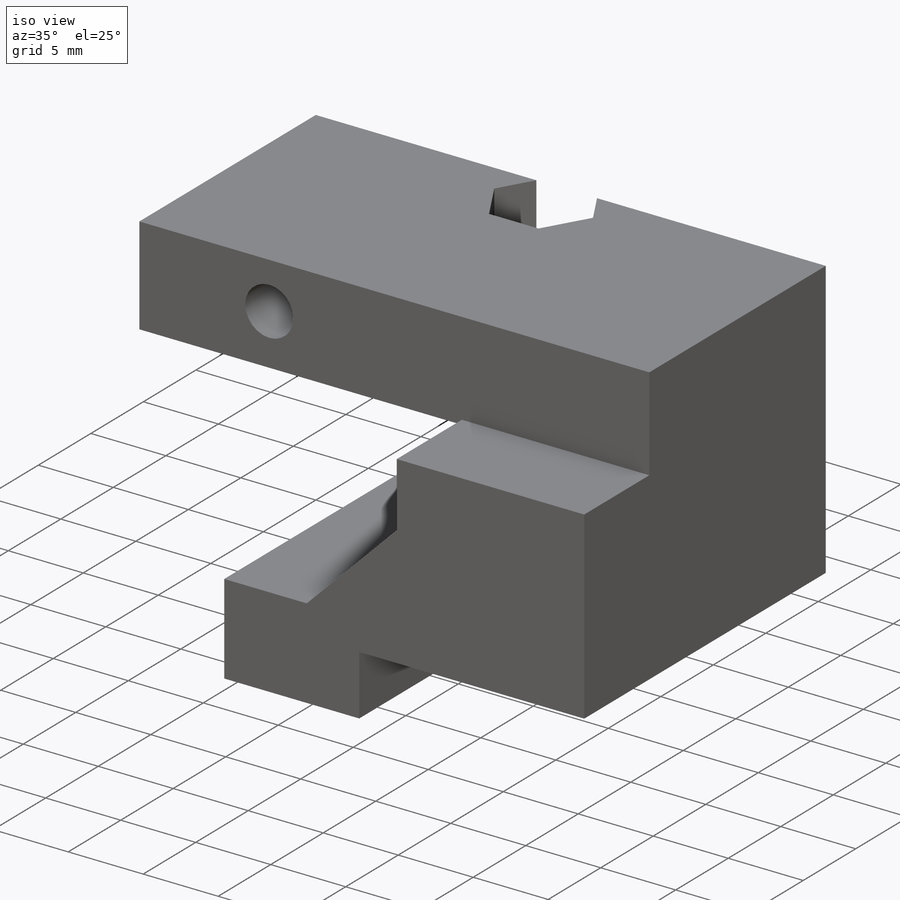
[diagram: iso view]
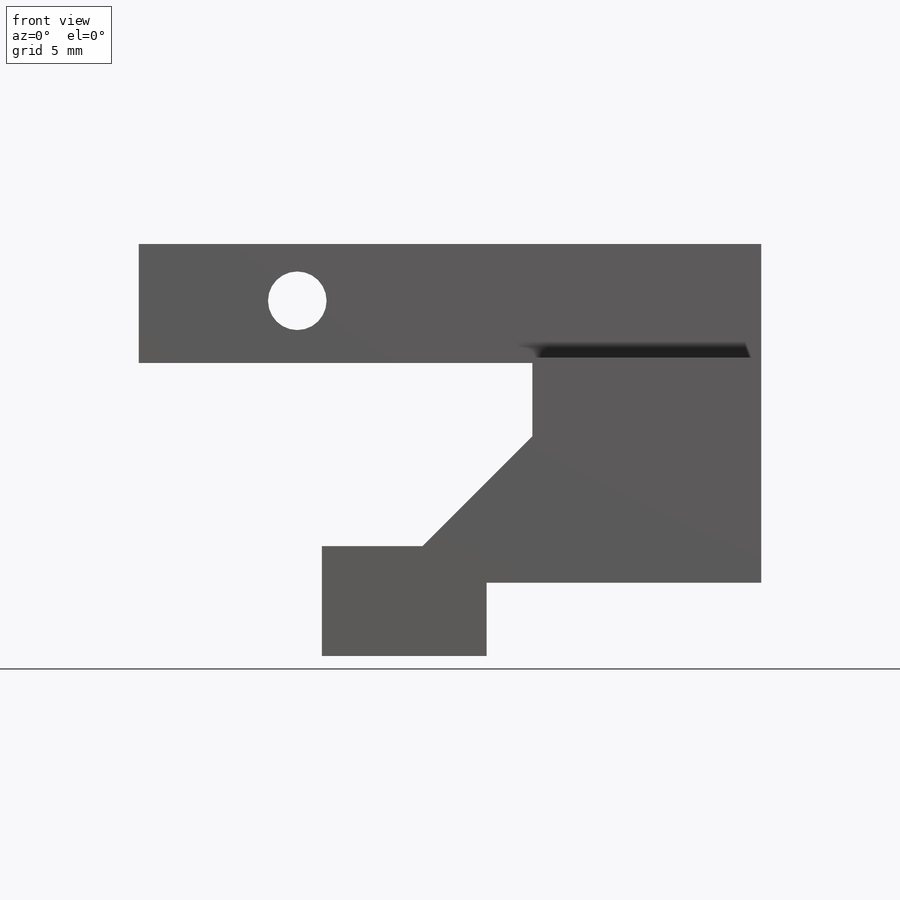
[diagram: front view]
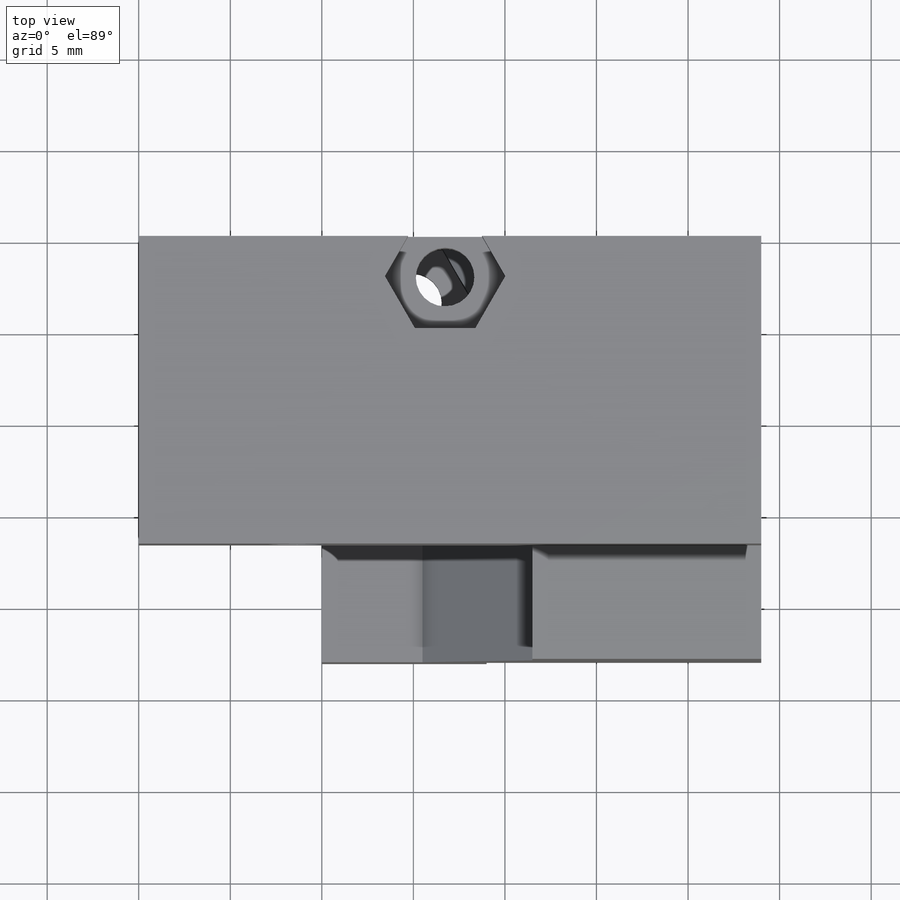
[diagram: top view]
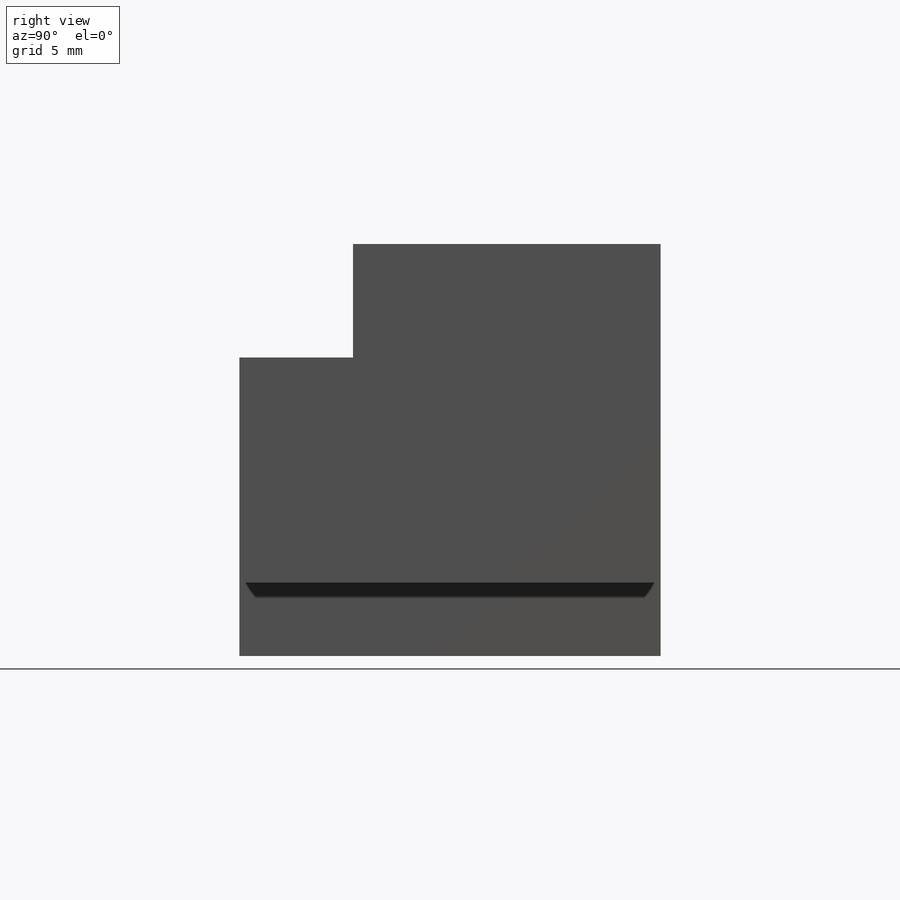
[diagram: right view]
SOLIDWORKS PART (.sldprt)
format: sldprt  version: not decoded by parser v0  size: 526,848 bytes
history: native  units: mm
features: sketch x10, cut_extrude x8, plane x3, extrude x2, material x1 (+13 scaffold rows collapsed)
feature tree (37):
  scaffold x13  (default folders/planes/origin — collapsed)
  material  "Material <sin especificar>"
  plane  "Alzado"
  plane  "Planta"
  plane  "Vista lateral"
  sketch  "Croquis1"  dims[c1.D1=14.0mm c1.D2=4.0mm c1.D3=10.0mm c1.D4=22.5mm c1.D5=2.0mm c1.D6=6.5mm c1.D7=6.0mm c2.D4=22.5mm c2.D8=10.0mm c2.D1=24.0mm c2.D3=9.0mm c2.D5=21.5mm]
  extrude  "Saliente-Extruir1"  Depth=23mm
  sketch  "Croquis2"  dims[D1=6.2mm]
  cut_extrude  "Cortar-Extruir1"  Depth=6.2mm
  sketch  "Croquis3"
  cut_extrude  "Cortar-Extruir2"  [1 undecoded]
  sketch  "Croquis4"  dims[D1=3.2mm D2=8.66mm D3=3.1mm]
  cut_extrude  "Cortar-Extruir3"  [1 undecoded]
  sketch  "Croquis5"  dims[D1=5.7mm]
  cut_extrude  "Cortar-Extruir4"  Depth=7mm
  sketch  "Croquis6"  dims[D1=3.2mm D2=8.07mm D3=14.6mm]
  cut_extrude  "Cortar-Extruir5"  [1 undecoded]
  sketch  "Croquis7"  dims[D1=3.2mm D2=3.3mm D3=4.95mm]
  cut_extrude  "Cortar-Extruir6"  [1 undecoded]
  sketch  "Croquis10"  dims[c1.D1=~6.064169mm c2.D1=45.0deg c2.D2=6.0mm]
  extrude  "Saliente-Extruir2"  [1 undecoded]
  sketch  "Croquis8"  dims[D1=5.7mm]
  cut_extrude  "Cortar-Extruir7"  Depth=4mm
  sketch  "Croquis9"  dims[D1=5.7mm]
  cut_extrude  "Cortar-Extruir8"  Depth=3mm
decode coverage: 14 of 20 modeling features carry decoded parameters
note: ~ marks probable driven/reference dimensions
note: 5 parameter values undecoded
summary: no parameter record found for 5 features
note: suppression state not decoded; provenance and decode notes live in map.json
